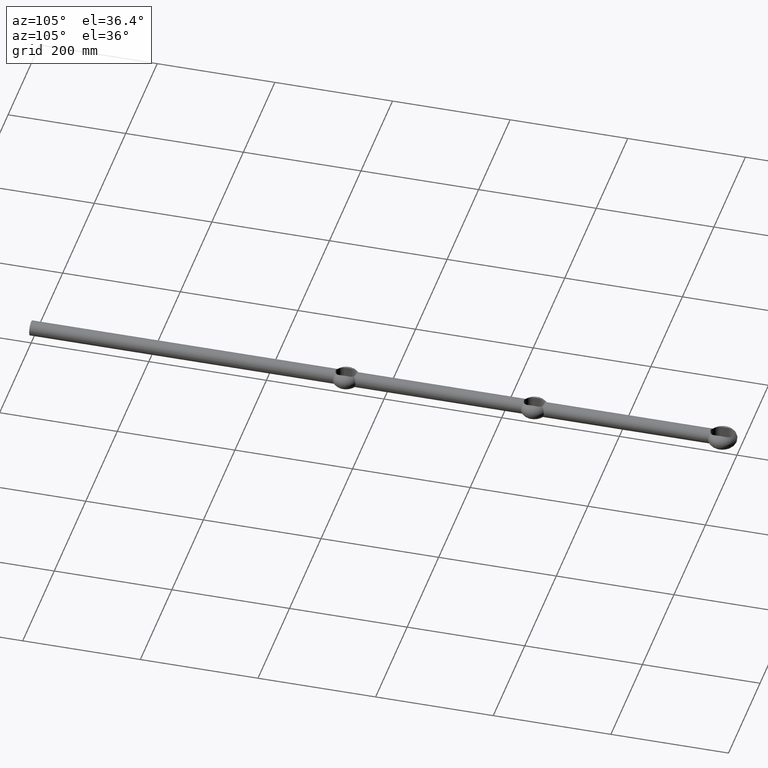
[diagram: clean part render]
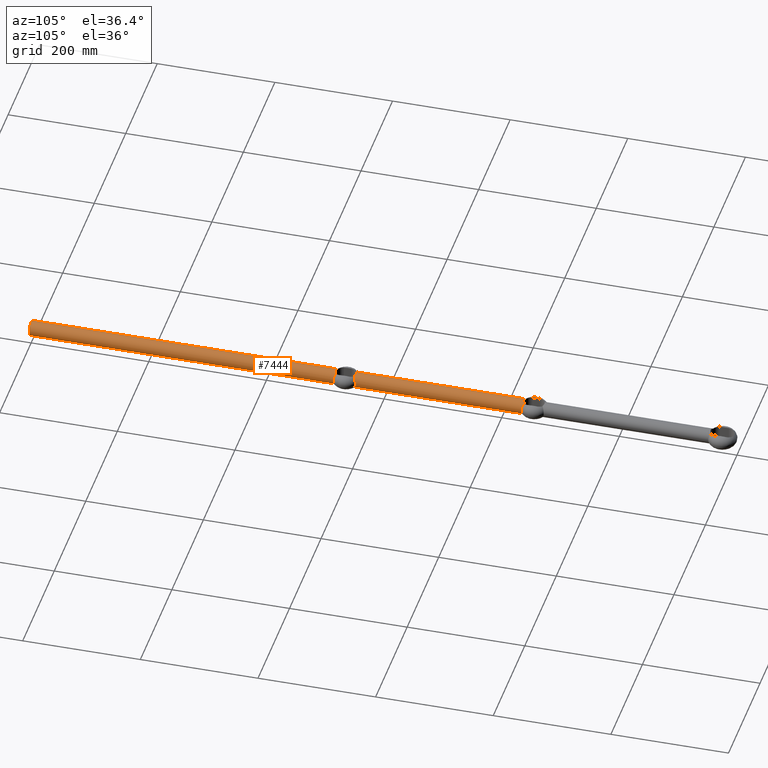
[diagram: same view with one face highlighted and labeled with its STEP entity id]
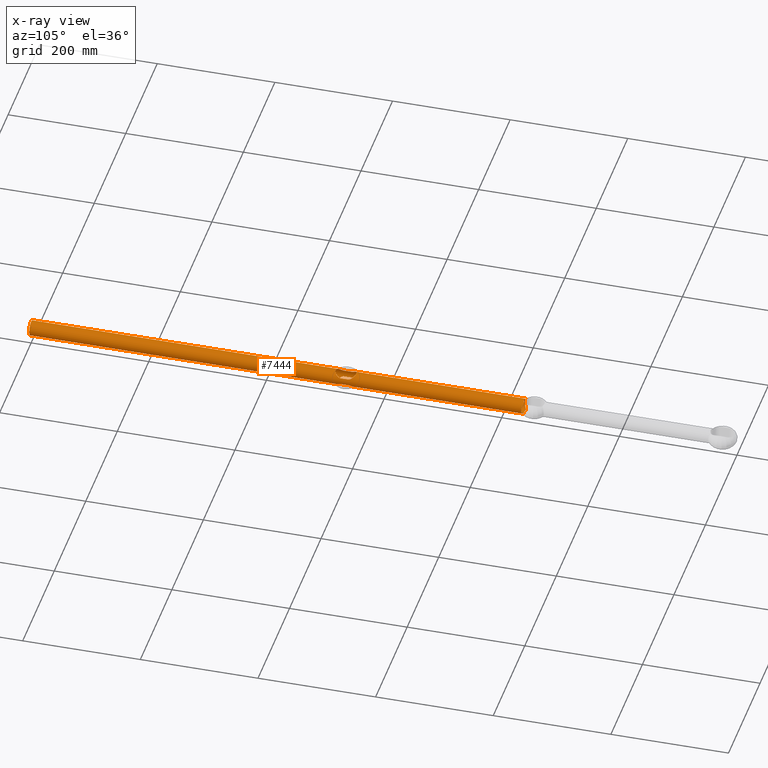
[diagram: x-ray of the same camera — body ghosted, the highlighted face saturated]
A machine part, auxiliary view. The second image highlights one B-rep face of the part: STEP entity #7444.
The next image is the same camera in x-ray: the body ghosted, the highlighted face saturated — about 0% of this face is hidden behind the body in this view.
In plain terms, the highlighted cylindrical surface (bore or boss wall) has radius 12.5 mm, axis along (-0, -1, -0).
Its self-contained STEP definition (entity closure, byte-faithful):
#39 = CARTESIAN_POINT ( 'NONE',  ( 1.139407965050737381, 838.0553805198055670, -12.45128839556241473 ) ) ;
#79 = CARTESIAN_POINT ( 'NONE',  ( -2.837003284522735314, 838.3576949993849894, -12.18612586938122000 ) ) ;
#99 = CARTESIAN_POINT ( 'NONE',  ( -3.787995630330420305, 552.3537761586400165, 11.93428918849788900 ) ) ;
#100 = B_SPLINE_CURVE_WITH_KNOTS ( 'NONE', 3,
 ( #2915, #8989, #11847, #10837, #8026, #11802, #7846, #79, #6985, #8904, #9980, #5951, #5901, #39, #6943, #3012, #1058, #7984, #11066, #5331, #6305, #10170, #1239, #7084 ),
 .UNSPECIFIED., .F., .F.,
 ( 4, 2, 2, 2, 2, 2, 2, 2, 2, 2, 2, 4 ),
 ( 0.01178495463687032237, 0.01350659789272319437, 0.01436741952064963211, 0.01522824114857606985, 0.01694988440442884645, 0.01867152766028162478, 0.01953234928820801047, 0.02039317091613439964, 0.02211481417198717797, 0.02297563579991356714, 0.02383645742783995630, 0.02555810068369258892 ),
 .UNSPECIFIED. ) ;
#152 = CARTESIAN_POINT ( 'NONE',  ( -4.804259992502487364, 551.9023473900940644, 11.54558912559098971 ) ) ;
#201 = CARTESIAN_POINT ( 'NONE',  ( -10.60729586147364500, 545.0056856495979218, 6.620153312527648382 ) ) ;
#211 = CARTESIAN_POINT ( 'NONE',  ( -6.250340644378910682, 839.9483017157430140, 10.82512086903536286 ) ) ;
#251 = CARTESIAN_POINT ( 'NONE',  ( -8.795661016712896796, 548.6391991432570876, 8.898266911032102655 ) ) ;
#367 = CARTESIAN_POINT ( 'NONE',  ( 8.795661016712893243, 548.6391991432567465, -8.898266911032099102 ) ) ;
#377 = CARTESIAN_POINT ( 'NONE',  ( 6.909232134611279719, 550.5886473378651544, 10.43860144910292931 ) ) ;
#378 = B_SPLINE_CURVE_WITH_KNOTS ( 'NONE', 3,
 ( #3793, #9659, #1763, #10715, #3834, #4861, #5754, #9694, #11724, #4820, #8602, #7648, #1724, #7689, #3709, #8676, #2678, #7733, #6785, #9574, #12564, #12649, #6745, #6704, #819, #10631, #4781, #8718, #1803, #858, #6663, #3673, #9611, #4739, #5717, #10554 ),
 .UNSPECIFIED., .F., .F.,
 ( 4, 2, 2, 2, 2, 2, 2, 2, 2, 2, 2, 2, 2, 2, 2, 2, 2, 4 ),
 ( 0.01951395620049950486, 0.02121630436440900130, 0.02291865252831849428, 0.02462100069222799073, 0.02632334885613748718, 0.02802569702004698363, 0.02887687110200173185, 0.02972804518395647660, 0.03313274151177562216, 0.03653743783959476077, 0.03738861192154952634, 0.03823978600350429191, 0.03994213416741380918, 0.04079330824936852617, 0.04164448233132324317, 0.04334683049523278819, 0.04504917865914233321, 0.04675152682305187823 ),
 .UNSPECIFIED. ) ;
#394 = CARTESIAN_POINT ( 'NONE',  ( -7.422493074062016305, 520.8743708993628161, -10.06274720975661019 ) ) ;
#407 = CARTESIAN_POINT ( 'NONE',  ( 0.7892831705582405988, 552.9785166629949344, -12.48108313540184255 ) ) ;
#421 = CARTESIAN_POINT ( 'NONE',  ( 10.99999999999993427, 542.0000000000003411, 5.937171043519075653 ) ) ;
#442 = CARTESIAN_POINT ( 'NONE',  ( 7.673213087604121796, 521.1109811105844756, 9.872400474792867087 ) ) ;
#450 = CARTESIAN_POINT ( 'NONE',  ( -2.675013956853381281, 552.6766632439287150, -12.21636765238290145 ) ) ;
#490 = CARTESIAN_POINT ( 'NONE',  ( 10.89792546999689371, 543.5431113648345445, -6.123086489174216496 ) ) ;
#521 = CARTESIAN_POINT ( 'NONE',  ( -10.89590794681913621, 527.4420840942875657, 6.126695288656489602 ) ) ;
#529 = CARTESIAN_POINT ( 'NONE',  ( 10.60729586147364856, 545.0056856495979218, -6.620153312527648382 ) ) ;
#565 = CARTESIAN_POINT ( 'NONE',  ( -5.126101849373926989, 519.2394161916768098, 11.42348066040987575 ) ) ;
#601 = CARTESIAN_POINT ( 'NONE',  ( 9.533387483753942959, 523.4711230445224146, -8.103398761844861298 ) ) ;
#645 = CARTESIAN_POINT ( 'NONE',  ( 0.4023197624886545309, 518.0005206419116348, 12.49954183520676310 ) ) ;
#652 = CARTESIAN_POINT ( 'NONE',  ( -8.787352286036465898, 548.6510448130576378, -8.906906770027113396 ) ) ;
#660 = CARTESIAN_POINT ( 'NONE',  ( -9.429479004405582288, 837.9374556686256028, 8.223389310750965464 ) ) ;
#700 = CARTESIAN_POINT ( 'NONE',  ( 1.150617809035629824, 838.0452062933663910, 12.46016225667634814 ) ) ;
#705 = CARTESIAN_POINT ( 'NONE',  ( -9.065148258886202015, 838.1556818532062607, 8.622634754079122388 ) ) ;
#744 = CARTESIAN_POINT ( 'NONE',  ( -6.250340644378910682, 839.9483017157430140, 10.82512086903536286 ) ) ;
#751 = ORIENTED_EDGE ( 'NONE', *, *, #8932, .T. ) ;
#779 = CARTESIAN_POINT ( 'NONE',  ( 3.887461779653164307, 838.7061740205847400, 11.88318776351355588 ) ) ;
#813 = CARTESIAN_POINT ( 'NONE',  ( 5.824594536600526062, 839.6543173033081757, 11.07094336227376274 ) ) ;
#819 = CARTESIAN_POINT ( 'NONE',  ( 10.99023662977672267, 837.0302173028330799, 5.980780063269842906 ) ) ;
#852 = CIRCLE ( 'NONE', #1380, 12.49999999999999645 ) ;
#856 = CARTESIAN_POINT ( 'NONE',  ( -12.34471645203050727, 836.2777349437944849, -1.984850203844926941 ) ) ;
#857 = VECTOR ( 'NONE', #10031, 1000.000000000000000 ) ;
#858 = CARTESIAN_POINT ( 'NONE',  ( 9.431502682148709127, 837.9362468456454280, 8.221115130871417875 ) ) ;
#1058 = CARTESIAN_POINT ( 'NONE',  ( 2.824078633998079457, 838.3540951722376349, -12.18926835385207141 ) ) ;
#1060 = EDGE_CURVE ( 'NONE', #1138, #11870, #378, .T. ) ;
#1076 = CARTESIAN_POINT ( 'NONE',  ( -0.4023197624885564982, 552.9994793580889336, 12.49954183520676487 ) ) ;
#1081 = ORIENTED_EDGE ( 'NONE', *, *, #7132, .T. ) ;
#1124 = CARTESIAN_POINT ( 'NONE',  ( -8.379748202632875120, 549.1581486825726870, 9.295148247895221871 ) ) ;
#1138 = VERTEX_POINT ( 'NONE', #6945 ) ;
#1239 = CARTESIAN_POINT ( 'NONE',  ( 5.819585327259732210, 839.6508583651338995, -11.07383564080975269 ) ) ;
#1258 = CARTESIAN_POINT ( 'NONE',  ( -9.839730710990844287, 546.9288155157166784, 7.713215017683070052 ) ) ;
#1277 = CARTESIAN_POINT ( 'NONE',  ( -10.99999999999986855, 528.6040239096712412, -5.937171043519171576 ) ) ;
#1294 = CARTESIAN_POINT ( 'NONE',  ( -10.99999999999993427, 1200.000999999999976, -5.937171043519074765 ) ) ;
#1335 = EDGE_CURVE ( 'NONE', #5769, #5769, #852, .T. ) ;
#1361 = CARTESIAN_POINT ( 'NONE',  ( -6.624542482687400202, 520.2114936248854065, -10.60544674900637929 ) ) ;
#1367 = CARTESIAN_POINT ( 'NONE',  ( 8.795661016712950087, 522.3608008567435945, 8.898266911032015614 ) ) ;
#1380 = AXIS2_PLACEMENT_3D ( 'NONE', #12049, #5131, #2255 ) ;
#1398 = CARTESIAN_POINT ( 'NONE',  ( 8.787352286036520965, 522.3489551869425895, -8.906906770027033460 ) ) ;
#1493 = CARTESIAN_POINT ( 'NONE',  ( -4.112566994411355203, 518.7910200397471954, 11.80963591135249757 ) ) ;
#1573 = CARTESIAN_POINT ( 'NONE',  ( 8.367498282197134429, 521.8278632720420092, -9.305994732262512059 ) ) ;
#1622 = CARTESIAN_POINT ( 'NONE',  ( -5.749883581372933428, 519.5956823434758007, 11.11938522148670394 ) ) ;
#1636 = CARTESIAN_POINT ( 'NONE',  ( 5.372012802262441156, 839.3857698694488363, 11.29902953822938372 ) ) ;
#1707 = EDGE_CURVE ( 'NONE', #10921, #10318, #9283, .T. ) ;
#1716 = CARTESIAN_POINT ( 'NONE',  ( -4.112566994411418264, 552.2089799602531457, -11.80963591135247981 ) ) ;
#1723 = CARTESIAN_POINT ( 'NONE',  ( -12.50046246320036936, 836.1930143710013681, -0.5649652187084375221 ) ) ;
#1724 = CARTESIAN_POINT ( 'NONE',  ( 11.67341840882419213, 836.6472213998814595, -4.479044536541676003 ) ) ;
#1761 = CARTESIAN_POINT ( 'NONE',  ( -12.11053525132085618, 836.4058078415469026, -3.109091094967530111 ) ) ;
#1763 = CARTESIAN_POINT ( 'NONE',  ( 7.106042576998170546, 839.3810141768317408, -10.29636099498600288 ) ) ;
#1796 = CARTESIAN_POINT ( 'NONE',  ( -3.620361234598561850, 838.6091067773645591, 11.96741013395638298 ) ) ;
#1803 = CARTESIAN_POINT ( 'NONE',  ( 9.935555531135744189, 837.6389762813788593, 7.589942720292638612 ) ) ;
#1919 = FACE_BOUND ( 'NONE', #5093, .T. ) ;
#2060 = CARTESIAN_POINT ( 'NONE',  ( 0.3733272682921007779, 553.0005015381598241, 12.50044135349318886 ) ) ;
#2143 = VERTEX_POINT ( 'NONE', #5913 ) ;
#2158 = CARTESIAN_POINT ( 'NONE',  ( -1.949230562792370725, 552.8327360204020806, 12.35300078078564212 ) ) ;
#2169 = VERTEX_POINT ( 'NONE', #7859 ) ;
#2230 = CARTESIAN_POINT ( 'NONE',  ( -4.804259992502376342, 519.0976526099063904, -11.54558912559103945 ) ) ;
#2236 = CARTESIAN_POINT ( 'NONE',  ( 10.99999999999993427, 529.0000000000000000, 5.937171043519079205 ) ) ;
#2243 = CARTESIAN_POINT ( 'NONE',  ( 10.99999999999993427, 542.0000000000003411, -5.937171043519074765 ) ) ;
#2255 = DIRECTION ( 'NONE',  ( 0.000000000000000000, 0.000000000000000000, 1.000000000000000000 ) ) ;
#2259 = CARTESIAN_POINT ( 'NONE',  ( -7.673213087604064953, 549.8890188894157518, 9.872400474792916825 ) ) ;
#2329 = CARTESIAN_POINT ( 'NONE',  ( 9.519627051650791927, 547.5217953285380190, -8.104979159214829920 ) ) ;
#2359 = CARTESIAN_POINT ( 'NONE',  ( 8.379748202632939069, 521.8418513174276541, 9.295148247895179239 ) ) ;
#2366 = B_SPLINE_CURVE_WITH_KNOTS ( 'NONE', 3,
 ( #2236, #8288, #4323, #11209, #2408, #5329, #5417, #6382, #7298, #3239, #10293, #1367, #2359, #442, #9302, #5458, #12507, #6476, #10372, #3576, #8529, #3456, #10331, #6551, #11332, #11418, #645, #5622, #11463, #5497, #7542, #11512, #3542, #10452, #1493, #565, #1622, #7498, #5541, #2624, #11377, #9517, #3613, #6431, #5581, #6516, #7453, #2583, #521, #4450, #8495, #9393 ),
 .UNSPECIFIED., .F., .F.,
 ( 4, 2, 2, 2, 2, 2, 2, 2, 2, 2, 2, 2, 2, 2, 2, 2, 2, 2, 2, 2, 2, 2, 2, 2, 2, 4 ),
 ( 4.670885906470169154E-18, 0.001166545829781350787, 0.002333091659562696804, 0.004666183319125084827, 0.005832729148906145265, 0.006999274978687208305, 0.009332366638249335253, 0.01049891246803029594, 0.01166545829781125490, 0.01283200412759221559, 0.01399854995737317628, 0.01633164161693509767, 0.01749818744671605836, 0.01866473327649701558, 0.01983127910627797627, 0.02099782493605893696, 0.02216437076583989765, 0.02333091659562085834, 0.02566400825518265136, 0.02799709991474444437, 0.03033019157430623738, 0.03266328323386803040, 0.03382982906364879333, 0.03499637489342955626, 0.03616292072321031226, 0.03732946655299107519 ),
 .UNSPECIFIED. ) ;
#2367 = CARTESIAN_POINT ( 'NONE',  ( 9.839730710990844287, 546.9288155157166784, -7.713215017683071828 ) ) ;
#2402 = CARTESIAN_POINT ( 'NONE',  ( 9.851415685578203352, 524.0591043262304538, -7.707541438492796715 ) ) ;
#2408 = CARTESIAN_POINT ( 'NONE',  ( 10.83772946422384109, 527.0814489869819681, 6.230281607106222808 ) ) ;
#2431 = CARTESIAN_POINT ( 'NONE',  ( 5.749883581373026686, 551.4043176565247677, 11.11938522148667197 ) ) ;
#2448 = CARTESIAN_POINT ( 'NONE',  ( 2.675013956853496744, 518.3233367560717397, -12.21636765238288014 ) ) ;
#2475 = CARTESIAN_POINT ( 'NONE',  ( 7.428954400678269288, 550.1403445418326328, 10.07110728629740315 ) ) ;
#2504 = CARTESIAN_POINT ( 'NONE',  ( 10.39218894284560868, 545.6709119447054945, -6.961529849445893703 ) ) ;
#2533 = CARTESIAN_POINT ( 'NONE',  ( 10.97810776254613074, 528.2068657687661926, -5.978156496741008574 ) ) ;
#2539 = CARTESIAN_POINT ( 'NONE',  ( -10.99999999999993427, 1200.000999999999976, 5.937171043519074765 ) ) ;
#2580 = CARTESIAN_POINT ( 'NONE',  ( 4.112566994411521293, 518.7910200397473091, -11.80963591135243895 ) ) ;
#2583 = CARTESIAN_POINT ( 'NONE',  ( -10.83570562530568182, 527.0695615121564970, 6.233846234099879702 ) ) ;
#2624 = CARTESIAN_POINT ( 'NONE',  ( -8.367498282197010084, 521.8278632720421228, 9.305994732262627522 ) ) ;
#2670 = CARTESIAN_POINT ( 'NONE',  ( -10.97810776254606857, 542.7931342312343759, -5.978156496741099168 ) ) ;
#2672 = CARTESIAN_POINT ( 'NONE',  ( -4.641261349106958534, 839.0234735115323019, 11.60936192940628509 ) ) ;
#2678 = CARTESIAN_POINT ( 'NONE',  ( 12.49857415661326598, 836.1940394568919146, -1.175576009617111062 ) ) ;
#2698 = LINE ( 'NONE', #5785, #10693 ) ;
#2713 = CARTESIAN_POINT ( 'NONE',  ( -6.909232134611282383, 550.5886473378654955, -10.43860144910292931 ) ) ;
#2720 = CARTESIAN_POINT ( 'NONE',  ( -4.393348440201925165, 838.9116690492086263, 11.70562680195460814 ) ) ;
#2743 = EDGE_CURVE ( 'NONE', #11067, #1138, #100, .T. ) ;
#2765 = CARTESIAN_POINT ( 'NONE',  ( -1.139407965050753591, 838.0553805198053396, 12.45128839556240941 ) ) ;
#2769 = CARTESIAN_POINT ( 'NONE',  ( -7.106441358696892863, 839.3727796378973380, -10.33081497119643366 ) ) ;
#2799 = CARTESIAN_POINT ( 'NONE',  ( -5.819585327259754415, 839.6508583651335584, 11.07383564080973670 ) ) ;
#2883 = ORIENTED_EDGE ( 'NONE', *, *, #1707, .T. ) ;
#2915 = CARTESIAN_POINT ( 'NONE',  ( -6.250340644378886701, 839.9483017157430140, -10.82512086903537707 ) ) ;
#3012 = CARTESIAN_POINT ( 'NONE',  ( 2.276638142971286971, 838.2229513530954819, -12.30418440178853601 ) ) ;
#3119 = CARTESIAN_POINT ( 'NONE',  ( -6.624542482687568068, 550.7885063751151620, 10.60544674900627093 ) ) ;
#3190 = CARTESIAN_POINT ( 'NONE',  ( -10.99999999999993427, 529.0000000000000000, -5.937171043519072988 ) ) ;
#3233 = CARTESIAN_POINT ( 'NONE',  ( -8.795661016712818636, 522.3608008567435945, -8.898266911032141735 ) ) ;
#3239 = CARTESIAN_POINT ( 'NONE',  ( 9.519627051650852323, 523.4782046714623220, 8.104979159214746431 ) ) ;
#3246 = EDGE_LOOP ( 'NONE', ( #8053 ) ) ;
#3263 = CARTESIAN_POINT ( 'NONE',  ( -7.422493074062083807, 550.1256291006377523, 10.06274720975655157 ) ) ;
#3274 = CARTESIAN_POINT ( 'NONE',  ( 10.99999999999999645, 529.0000000000000000, -5.937171043518957525 ) ) ;
#3280 = CARTESIAN_POINT ( 'NONE',  ( -9.839730710990750140, 524.0711844842837763, -7.713215017683209496 ) ) ;
#3326 = CARTESIAN_POINT ( 'NONE',  ( -10.89792546999683154, 527.4568886351657966, -6.123086489174297320 ) ) ;
#3354 = CARTESIAN_POINT ( 'NONE',  ( 8.787352286036460569, 548.6510448130576378, 8.906906770027120501 ) ) ;
#3365 = CARTESIAN_POINT ( 'NONE',  ( -10.97872767729319321, 528.2167306837859542, -5.976998100330241925 ) ) ;
#3378 = CARTESIAN_POINT ( 'NONE',  ( 5.754441225195932041, 551.3816357520595375, -11.10208626314466329 ) ) ;
#3390 = CARTESIAN_POINT ( 'NONE',  ( 10.89590794681920194, 543.5579159057128891, 6.126695288656405225 ) ) ;
#3408 = CARTESIAN_POINT ( 'NONE',  ( 10.37225639478762140, 525.3203053792749415, -6.978884041121404813 ) ) ;
#3436 = CARTESIAN_POINT ( 'NONE',  ( 10.68006026725760016, 544.6599665113263882, 6.496896794349440896 ) ) ;
#3456 = CARTESIAN_POINT ( 'NONE',  ( 3.787995630330495800, 518.6462238413605519, 11.93428918849785525 ) ) ;
#3494 = CARTESIAN_POINT ( 'NONE',  ( 10.58625742050278795, 525.9908457919444800, -6.649787891766289150 ) ) ;
#3502 = CARTESIAN_POINT ( 'NONE',  ( 1.949230562792371835, 552.8327360204024217, -12.35300078078564923 ) ) ;
#3542 = CARTESIAN_POINT ( 'NONE',  ( -3.041688872940271793, 518.4221616029151392, 12.13001838620320783 ) ) ;
#3549 = CARTESIAN_POINT ( 'NONE',  ( -10.25173419311122558, 546.0022064290936896, -7.155668560157675273 ) ) ;
#3573 = CARTESIAN_POINT ( 'NONE',  ( 10.99999999999999645, 529.0000000000000000, -5.937171043518957525 ) ) ;
#3576 = CARTESIAN_POINT ( 'NONE',  ( 5.130969763086973501, 519.2633767409419079, 11.40364251012925578 ) ) ;
#3607 = LINE ( 'NONE', #2539, #10525 ) ;
#3613 = CARTESIAN_POINT ( 'NONE',  ( -9.851415685578070125, 524.0591043262304538, 7.707541438492961916 ) ) ;
#3622 = CARTESIAN_POINT ( 'NONE',  ( -10.58625742050272400, 545.0091542080557474, -6.649787891766372638 ) ) ;
#3626 = ORIENTED_EDGE ( 'NONE', *, *, #11894, .T. ) ;
#3666 = CARTESIAN_POINT ( 'NONE',  ( -6.250340644378910682, 839.9483017157430140, 10.82512086903536286 ) ) ;
#3673 = CARTESIAN_POINT ( 'NONE',  ( 8.318637239814172801, 838.6124043426335675, 9.344865063706233599 ) ) ;
#3699 = CARTESIAN_POINT ( 'NONE',  ( -9.533387483753884339, 547.5288769554780401, -8.103398761844896825 ) ) ;
#3709 = CARTESIAN_POINT ( 'NONE',  ( 11.95199179039278192, 836.4930261193042043, -3.671624959433470892 ) ) ;
#3792 = FACE_OUTER_BOUND ( 'NONE', #7378, .T. ) ;
#3793 = CARTESIAN_POINT ( 'NONE',  ( 6.250340644378961308, 839.9483017157429003, -10.82512086903533444 ) ) ;
#3834 = CARTESIAN_POINT ( 'NONE',  ( 8.315301373351106307, 838.6144865247297275, -9.347680856318383746 ) ) ;
#4053 = CARTESIAN_POINT ( 'NONE',  ( -9.347701959804924243, 547.8078500812991933, 8.303232488367514819 ) ) ;
#4094 = CARTESIAN_POINT ( 'NONE',  ( 10.99999999999993427, 1200.000999999999976, -5.937171043519074765 ) ) ;
#4127 = VERTEX_POINT ( 'NONE', #11907 ) ;
#4156 = CARTESIAN_POINT ( 'NONE',  ( -5.130969763086916657, 551.7366232590584332, 11.40364251012928776 ) ) ;
#4175 = CARTESIAN_POINT ( 'NONE',  ( -7.673213087603939719, 521.1109811105845893, -9.872400474793005642 ) ) ;
#4220 = CARTESIAN_POINT ( 'NONE',  ( -3.076022648827779982, 518.4109130439665023, -12.13971156873000368 ) ) ;
#4275 = CARTESIAN_POINT ( 'NONE',  ( -0.7892831705581203616, 518.0214833370056340, -12.48108313540184966 ) ) ;
#4299 = CARTESIAN_POINT ( 'NONE',  ( 10.25173419311122558, 546.0022064290935759, 7.155668560157677938 ) ) ;
#4323 = CARTESIAN_POINT ( 'NONE',  ( 10.97872767729331578, 528.2167306837859542, 5.976998100330016328 ) ) ;
#4330 = CARTESIAN_POINT ( 'NONE',  ( 8.379748202632873344, 549.1581486825726870, -9.295148247895221871 ) ) ;
#4342 = CARTESIAN_POINT ( 'NONE',  ( 4.112566994411438692, 552.2089799602531457, 11.80963591135246915 ) ) ;
#4383 = CARTESIAN_POINT ( 'NONE',  ( 10.58625742050272400, 545.0091542080557474, 6.649787891766370862 ) ) ;
#4413 = CARTESIAN_POINT ( 'NONE',  ( 9.347701959804924243, 547.8078500812990796, -8.303232488367514819 ) ) ;
#4450 = CARTESIAN_POINT ( 'NONE',  ( -10.97810776254600817, 528.2068657687661926, 5.978156496741237724 ) ) ;
#4505 = CARTESIAN_POINT ( 'NONE',  ( -10.89590794681919839, 543.5579159057127754, -6.126695288656406113 ) ) ;
#4517 = CARTESIAN_POINT ( 'NONE',  ( -10.41090122889134761, 837.3618556187303739, 6.939838182200646521 ) ) ;
#4584 = CARTESIAN_POINT ( 'NONE',  ( 1.541147260303614486, 518.1014537545833036, -12.41079883079560098 ) ) ;
#4597 = FACE_BOUND ( 'NONE', #6240, .T. ) ;
#4737 = CARTESIAN_POINT ( 'NONE',  ( -7.922492711130053600, 838.8549607614734214, -9.726219301012958951 ) ) ;
#4739 = CARTESIAN_POINT ( 'NONE',  ( 7.099091824877000079, 839.3855091636992256, 10.30124497867896416 ) ) ;
#4748 = CARTESIAN_POINT ( 'NONE',  ( -10.99999999999993427, 542.3959760903292135, 5.937171043519093416 ) ) ;
#4781 = CARTESIAN_POINT ( 'NONE',  ( 10.41164548625611808, 837.3619166438484172, 6.922629427531410862 ) ) ;
#4785 = VERTEX_POINT ( 'NONE', #8450 ) ;
#4814 = CARTESIAN_POINT ( 'NONE',  ( 2.837003284522724655, 838.3576949993847620, 12.18612586938122178 ) ) ;
#4819 = CARTESIAN_POINT ( 'NONE',  ( -12.29608760154313529, 836.3042523927352931, -2.266832200918630580 ) ) ;
#4820 = CARTESIAN_POINT ( 'NONE',  ( 10.98126576961715273, 837.0353194045643477, -5.996714612637974007 ) ) ;
#4854 = AXIS2_PLACEMENT_3D ( 'NONE', #12644, #12799, #6778 ) ;
#4861 = CARTESIAN_POINT ( 'NONE',  ( 9.066882314766891326, 838.1546552159076100, -8.620615953132539033 ) ) ;
#4904 = CARTESIAN_POINT ( 'NONE',  ( -6.250340644378886701, 839.9483017157430140, -10.82512086903537707 ) ) ;
#5044 = CARTESIAN_POINT ( 'NONE',  ( -6.898195547987179488, 550.5752055309106936, 10.42915063769302719 ) ) ;
#5093 = EDGE_LOOP ( 'NONE', ( #1081, #2883, #10965, #8947 ) ) ;
#5131 = DIRECTION ( 'NONE',  ( 0.000000000000000000, 1.000000000000000000, 0.000000000000000000 ) ) ;
#5181 = CARTESIAN_POINT ( 'NONE',  ( 2.675013956853377728, 552.6766632439286013, 12.21636765238290678 ) ) ;
#5231 = CARTESIAN_POINT ( 'NONE',  ( -10.39218894284560513, 545.6709119447052672, 6.961529849445893703 ) ) ;
#5271 = CARTESIAN_POINT ( 'NONE',  ( 9.851415685578153614, 546.9408956737698873, 7.707541438492903296 ) ) ;
#5329 = CARTESIAN_POINT ( 'NONE',  ( 10.60729586147370185, 525.9943143504024192, 6.620153312527505385 ) ) ;
#5331 = CARTESIAN_POINT ( 'NONE',  ( 4.393348440201895855, 838.9116690492086263, -11.70562680195461880 ) ) ;
#5337 = CARTESIAN_POINT ( 'NONE',  ( 5.130969763086918434, 551.7366232590583195, -11.40364251012928065 ) ) ;
#5351 = CARTESIAN_POINT ( 'NONE',  ( 10.37225639478755745, 545.6796946207256269, 6.978884041121515835 ) ) ;
#5412 = CARTESIAN_POINT ( 'NONE',  ( 5.749883581373096852, 519.5956823434760281, -11.11938522148662223 ) ) ;
#5417 = CARTESIAN_POINT ( 'NONE',  ( 10.39218894284567440, 525.3290880552949602, 6.961529849445831530 ) ) ;
#5453 = CARTESIAN_POINT ( 'NONE',  ( 6.909232134611362319, 520.4113526621351866, -10.43860144910288845 ) ) ;
#5458 = CARTESIAN_POINT ( 'NONE',  ( 6.898195547987319820, 520.4247944690897612, 10.42915063769292239 ) ) ;
#5464 = CARTESIAN_POINT ( 'NONE',  ( 6.624542482687567180, 550.7885063751150483, -10.60544674900626561 ) ) ;
#5497 = CARTESIAN_POINT ( 'NONE',  ( -1.541147260303414646, 518.1014537545834173, 12.41079883079562940 ) ) ;
#5537 = CARTESIAN_POINT ( 'NONE',  ( 5.126101849374091302, 519.2394161916766961, -11.42348066040979937 ) ) ;
#5541 = CARTESIAN_POINT ( 'NONE',  ( -7.428954400678194681, 520.8596554581679356, 10.07110728629744223 ) ) ;
#5581 = CARTESIAN_POINT ( 'NONE',  ( -10.37225639478749173, 525.3203053792748278, 6.978884041121590442 ) ) ;
#5622 = CARTESIAN_POINT ( 'NONE',  ( -0.3733272682920015795, 517.9994984618405169, 12.50044135349318886 ) ) ;
#5710 = CARTESIAN_POINT ( 'NONE',  ( 2.287860830194230921, 838.2251626778391937, 12.30224603992436272 ) ) ;
#5717 = CARTESIAN_POINT ( 'NONE',  ( 6.678919237530326569, 839.6601855650079642, 10.57766292075993420 ) ) ;
#5743 = ORIENTED_EDGE ( 'NONE', *, *, #12181, .T. ) ;
#5753 = CARTESIAN_POINT ( 'NONE',  ( -12.18249205319098216, 836.3662141827205687, 2.855962753906949203 ) ) ;
#5754 = CARTESIAN_POINT ( 'NONE',  ( 9.425601429565526601, 837.9397464817585615, -8.228177549877552011 ) ) ;
#5763 = VERTEX_POINT ( 'NONE', #8784 ) ;
#5769 = VERTEX_POINT ( 'NONE', #11946 ) ;
#5785 = CARTESIAN_POINT ( 'NONE',  ( 10.99999999999993427, 1200.000999999999976, 5.937171043519074765 ) ) ;
#5790 = CARTESIAN_POINT ( 'NONE',  ( -11.24333478139446818, 836.8874761092196195, -5.490938602186474782 ) ) ;
#5881 = ORIENTED_EDGE ( 'NONE', *, *, #9016, .F. ) ;
#5901 = CARTESIAN_POINT ( 'NONE',  ( 0.5651322442697455095, 838.0107519991784102, -12.49053476704560062 ) ) ;
#5913 = CARTESIAN_POINT ( 'NONE',  ( -10.99999999999993427, 542.0000000000003411, -5.937171043519072988 ) ) ;
#5951 = CARTESIAN_POINT ( 'NONE',  ( 0.2784718264512110464, 837.9998018624827409, -12.50017436100595347 ) ) ;
#6012 = CARTESIAN_POINT ( 'NONE',  ( -5.754441225195928489, 551.3816357520594238, 11.10208626314466329 ) ) ;
#6055 = CARTESIAN_POINT ( 'NONE',  ( -9.519627051650791927, 547.5217953285381327, 8.104979159214828144 ) ) ;
#6105 = CARTESIAN_POINT ( 'NONE',  ( -10.97872767729325005, 542.7832693162145006, 5.976998100330104258 ) ) ;
#6151 = CARTESIAN_POINT ( 'NONE',  ( 3.041688872940350397, 552.5778383970856567, 12.13001838620319717 ) ) ;
#6169 = CARTESIAN_POINT ( 'NONE',  ( -6.898195547987106657, 520.4247944690895338, -10.42915063769306094 ) ) ;
#6240 = EDGE_LOOP ( 'NONE', ( #5881, #10728, #5743, #9647 ) ) ;
#6258 = CARTESIAN_POINT ( 'NONE',  ( -0.4023197624884514156, 518.0005206419117485, -12.49954183520677020 ) ) ;
#6276 = CARTESIAN_POINT ( 'NONE',  ( 10.99999999999993427, 542.0000000000003411, -5.937171043519074765 ) ) ;
#6298 = CARTESIAN_POINT ( 'NONE',  ( -9.519627051650692451, 523.4782046714623220, -8.104979159214932949 ) ) ;
#6305 = CARTESIAN_POINT ( 'NONE',  ( 4.641261349106998502, 839.0234735115324156, -11.60936192940626732 ) ) ;
#6308 = EDGE_CURVE ( 'NONE', #7116, #2143, #7398, .T. ) ;
#6352 = CARTESIAN_POINT ( 'NONE',  ( -1.925570257704329657, 552.8369283875211977, -12.35667906317034515 ) ) ;
#6382 = CARTESIAN_POINT ( 'NONE',  ( 9.988467199293140197, 524.3795217356815783, 7.518852653548755427 ) ) ;
#6389 = CARTESIAN_POINT ( 'NONE',  ( 10.99999999999993072, 542.3959760903292135, -5.937171043519085423 ) ) ;
#6426 = CARTESIAN_POINT ( 'NONE',  ( 0.3733272682922050834, 517.9994984618406306, -12.50044135349317997 ) ) ;
#6431 = CARTESIAN_POINT ( 'NONE',  ( -10.25173419311116696, 524.9977935709067651, 7.155668560157779190 ) ) ;
#6438 = CARTESIAN_POINT ( 'NONE',  ( 4.804259992502487364, 551.9023473900939507, -11.54558912559098793 ) ) ;
#6447 = DIRECTION ( 'NONE',  ( -0.000000000000000000, -1.000000000000000000, -0.000000000000000000 ) ) ;
#6476 = CARTESIAN_POINT ( 'NONE',  ( 6.052660634286213259, 519.8082805386301288, 10.94190856738905637 ) ) ;
#6494 = CARTESIAN_POINT ( 'NONE',  ( -11.95182304600800016, 836.4931197021811613, 3.672034156479669686 ) ) ;
#6516 = CARTESIAN_POINT ( 'NONE',  ( -10.58625742050266716, 525.9908457919445937, 6.649787891766487213 ) ) ;
#6521 = CARTESIAN_POINT ( 'NONE',  ( -10.83570562530576709, 543.9304384878440715, -6.233846234099709172 ) ) ;
#6527 = CARTESIAN_POINT ( 'NONE',  ( 6.250340644378900912, 839.9483017157430140, 10.82512086903536819 ) ) ;
#6551 = CARTESIAN_POINT ( 'NONE',  ( 1.949230562792457544, 518.1672639795983741, 12.35300078078563146 ) ) ;
#6561 = CARTESIAN_POINT ( 'NONE',  ( -5.749883581373021357, 551.4043176565246540, -11.11938522148667552 ) ) ;
#6575 = CARTESIAN_POINT ( 'NONE',  ( -7.930337506180386242, 838.8500837923978679, 9.719399120801256231 ) ) ;
#6611 = CARTESIAN_POINT ( 'NONE',  ( 4.645949983978148623, 839.0256261156855544, 11.60751033855822811 ) ) ;
#6662 = CARTESIAN_POINT ( 'NONE',  ( -11.23204343180504061, 836.8938239363136518, 5.514455733987206898 ) ) ;
#6663 = CARTESIAN_POINT ( 'NONE',  ( 9.073717630047321236, 838.1505150376323172, 8.613586764912094296 ) ) ;
#6704 = CARTESIAN_POINT ( 'NONE',  ( 11.24474346431857619, 836.8866839290492408, 5.488025213573121341 ) ) ;
#6745 = CARTESIAN_POINT ( 'NONE',  ( 11.57857393162085913, 836.6999873859767831, 4.718558550105871774 ) ) ;
#6778 = DIRECTION ( 'NONE',  ( 0.000000000000000000, 0.000000000000000000, -1.000000000000000000 ) ) ;
#6781 = CARTESIAN_POINT ( 'NONE',  ( -9.058739677260666312, 838.1607466065654535, -8.617467763181256402 ) ) ;
#6785 = CARTESIAN_POINT ( 'NONE',  ( 12.34427390251496703, 836.2772424137846201, 2.274804351676415592 ) ) ;
#6820 = CARTESIAN_POINT ( 'NONE',  ( -12.17914783697488446, 836.3682055592730649, -2.828543175745145355 ) ) ;
#6943 = CARTESIAN_POINT ( 'NONE',  ( 1.428207773063064234, 838.0893544072818031, -12.42142227419123834 ) ) ;
#6945 = CARTESIAN_POINT ( 'NONE',  ( 6.250340644378961308, 839.9483017157429003, -10.82512086903533444 ) ) ;
#6985 = CARTESIAN_POINT ( 'NONE',  ( -2.287860830194236250, 838.2251626778391937, -12.30224603992436272 ) ) ;
#7004 = CARTESIAN_POINT ( 'NONE',  ( -3.076022648827901218, 552.5890869560338388, 12.13971156872996460 ) ) ;
#7055 = CARTESIAN_POINT ( 'NONE',  ( -1.561486032180027239, 552.8955292397519088, 12.40814915801084339 ) ) ;
#7084 = CARTESIAN_POINT ( 'NONE',  ( 6.250340644378961308, 839.9483017157429003, -10.82512086903533444 ) ) ;
#7103 = CARTESIAN_POINT ( 'NONE',  ( -9.988467199293083354, 546.6204782643191038, 7.518852653548851350 ) ) ;
#7116 = VERTEX_POINT ( 'NONE', #6276 ) ;
#7132 = EDGE_CURVE ( 'NONE', #2143, #10921, #9788, .T. ) ;
#7149 = CARTESIAN_POINT ( 'NONE',  ( -10.89792546999689549, 543.5431113648345445, 6.123086489174215608 ) ) ;
#7171 = CARTESIAN_POINT ( 'NONE',  ( -8.379748202632764986, 521.8418513174277678, -9.295148247895339111 ) ) ;
#7189 = LINE ( 'NONE', #4094, #12569 ) ;
#7194 = CARTESIAN_POINT ( 'NONE',  ( -10.83772946422378070, 543.9185510130186003, 6.230281607106310737 ) ) ;
#7298 = CARTESIAN_POINT ( 'NONE',  ( 9.839730710990908236, 524.0711844842837763, 7.713215017683008767 ) ) ;
#7305 = CARTESIAN_POINT ( 'NONE',  ( 3.076022648827904327, 552.5890869560339524, -12.13971156872996104 ) ) ;
#7314 = CARTESIAN_POINT ( 'NONE',  ( 10.99999999999993250, 542.3974740288044813, 5.937171043519088087 ) ) ;
#7328 = CARTESIAN_POINT ( 'NONE',  ( 3.759777883009550070, 518.6556002288655236, -11.92699826108098549 ) ) ;
#7333 = CARTESIAN_POINT ( 'NONE',  ( -10.99999999999993427, 529.0000000000000000, -5.937171043519072988 ) ) ;
#7341 = CARTESIAN_POINT ( 'NONE',  ( -3.041688872940364163, 552.5778383970855430, -12.13001838620318829 ) ) ;
#7378 = EDGE_LOOP ( 'NONE', ( #7388, #751, #3626, #11791 ) ) ;
#7388 = ORIENTED_EDGE ( 'NONE', *, *, #1060, .T. ) ;
#7398 = B_SPLINE_CURVE_WITH_KNOTS ( 'NONE', 3,
 ( #2243, #6389, #10299, #490, #8253, #529, #2504, #12177, #2367, #2329, #4413, #367, #4330, #10377, #9271, #11341, #5464, #11216, #3378, #5337, #6438, #7421, #7305, #3502, #12214, #407, #8295, #10260, #11257, #11295, #6352, #450, #7341, #9436, #1716, #9527, #6561, #2713, #8636, #9601, #652, #3699, #10542, #3549, #10458, #3622, #8591, #6521, #4505, #2670, #9479, #9564 ),
 .UNSPECIFIED., .F., .F.,
 ( 4, 2, 2, 2, 2, 2, 2, 2, 2, 2, 2, 2, 2, 2, 2, 2, 2, 2, 2, 2, 2, 2, 2, 2, 2, 4 ),
 ( 0.000000000000000000, 0.001166545829781314792, 0.002333091659562629584, 0.004666183319124954723, 0.005832729148905982201, 0.006999274978687009680, 0.009332366638249064636, 0.01049891246802998543, 0.01166545829781090969, 0.01283200412759183222, 0.01399854995737275648, 0.01633164161693460154, 0.01749818744671552406, 0.01866473327649645006, 0.01983127910627737259, 0.02099782493605828818, 0.02216437076583921070, 0.02333091659562013323, 0.02566400825518184992, 0.02799709991474357007, 0.03033019157430528676, 0.03266328323386700344, 0.03382982906364786352, 0.03499637489342872360, 0.03616292072320958367, 0.03732946655299043681 ),
 .UNSPECIFIED. ) ;
#7421 = CARTESIAN_POINT ( 'NONE',  ( 3.787995630330420305, 552.3537761586400165, -11.93428918849788900 ) ) ;
#7444 = ADVANCED_FACE ( 'NONE', ( #1919, #4597, #7813, #3792 ), #7505, .T. ) ;
#7453 = CARTESIAN_POINT ( 'NONE',  ( -10.68006026725753621, 526.3400334886740666, 6.496896794349519944 ) ) ;
#7494 = CARTESIAN_POINT ( 'NONE',  ( 3.041688872940457422, 518.4221616029152528, -12.13001838620316342 ) ) ;
#7498 = CARTESIAN_POINT ( 'NONE',  ( -6.909232134611208664, 520.4113526621350729, 10.43860144910299148 ) ) ;
#7505 = CYLINDRICAL_SURFACE ( 'NONE', #4854, 12.49999999999999645 ) ;
#7542 = CARTESIAN_POINT ( 'NONE',  ( -1.925570257704261712, 518.1630716124790297, 12.35667906317034870 ) ) ;
#7594 = CARTESIAN_POINT ( 'NONE',  ( -0.5651322442697597204, 838.0107519991784102, 12.49053476704560062 ) ) ;
#7646 = CARTESIAN_POINT ( 'NONE',  ( -11.57023834049581801, 836.7046315832084247, 4.739102253395293118 ) ) ;
#7648 = CARTESIAN_POINT ( 'NONE',  ( 11.56964285751844379, 836.7049658738098969, -4.740379503230901292 ) ) ;
#7682 = DIRECTION ( 'NONE',  ( 0.000000000000000000, 1.000000000000000000, 0.000000000000000000 ) ) ;
#7689 = CARTESIAN_POINT ( 'NONE',  ( 11.86466394294699711, 836.5412114065450169, -3.944652941480739639 ) ) ;
#7726 = CARTESIAN_POINT ( 'NONE',  ( -0.2784718264512257568, 837.9998018624826273, 12.50017436100595347 ) ) ;
#7732 = CARTESIAN_POINT ( 'NONE',  ( -11.87866640046770961, 836.5333568596515761, -3.933615460052299895 ) ) ;
#7733 = CARTESIAN_POINT ( 'NONE',  ( 12.50140721360777363, 836.1925015038516449, 1.145055711441021806 ) ) ;
#7766 = CARTESIAN_POINT ( 'NONE',  ( -10.98639180345328725, 837.0323883539314238, -5.988120528304731849 ) ) ;
#7813 = FACE_OUTER_BOUND ( 'NONE', #3246, .T. ) ;
#7846 = CARTESIAN_POINT ( 'NONE',  ( -3.628594115689871114, 838.6120206207267529, -11.96488059191480069 ) ) ;
#7859 = CARTESIAN_POINT ( 'NONE',  ( -10.99999999999987033, 529.0000000000000000, 5.937171043519194669 ) ) ;
#7984 = CARTESIAN_POINT ( 'NONE',  ( 3.620361234598565403, 838.6091067773647865, -11.96741013395638653 ) ) ;
#8026 = CARTESIAN_POINT ( 'NONE',  ( -4.395598388745396434, 838.9126848374997962, -11.70475225350974213 ) ) ;
#8053 = ORIENTED_EDGE ( 'NONE', *, *, #1335, .T. ) ;
#8157 = CARTESIAN_POINT ( 'NONE',  ( -5.130969763086735469, 519.2633767409416805, -11.40364251012935703 ) ) ;
#8199 = CARTESIAN_POINT ( 'NONE',  ( -9.988467199293015852, 524.3795217356816920, -7.518852653548922405 ) ) ;
#8253 = CARTESIAN_POINT ( 'NONE',  ( 10.83772946422377892, 543.9185510130186003, -6.230281607106310737 ) ) ;
#8284 = CARTESIAN_POINT ( 'NONE',  ( -1.561486032179908001, 518.1044707602483186, -12.40814915801086826 ) ) ;
#8288 = CARTESIAN_POINT ( 'NONE',  ( 10.99999999999999822, 528.6040239096714686, 5.937171043518949531 ) ) ;
#8295 = CARTESIAN_POINT ( 'NONE',  ( 0.4023197624885627710, 552.9994793580885926, -12.49954183520675954 ) ) ;
#8335 = EDGE_CURVE ( 'NONE', #4785, #5763, #9853, .T. ) ;
#8347 = CARTESIAN_POINT ( 'NONE',  ( 10.97810776254607035, 542.7931342312342622, 5.978156496741099168 ) ) ;
#8364 = CARTESIAN_POINT ( 'NONE',  ( 10.83570562530580794, 527.0695615121564970, -6.233846234099662986 ) ) ;
#8391 = CARTESIAN_POINT ( 'NONE',  ( 10.83570562530574577, 543.9304384878441851, 6.233846234099747363 ) ) ;
#8413 = DIRECTION ( 'NONE',  ( 0.000000000000000000, 1.000000000000000000, 0.000000000000000000 ) ) ;
#8448 = CARTESIAN_POINT ( 'NONE',  ( 10.89590794681926411, 527.4420840942875657, -6.126695288656267557 ) ) ;
#8450 = CARTESIAN_POINT ( 'NONE',  ( -10.99999999999993427, 542.0000000000003411, 5.937171043519079205 ) ) ;
#8495 = CARTESIAN_POINT ( 'NONE',  ( -10.99999999999986855, 528.6025259711959734, 5.937171043519176017 ) ) ;
#8529 = CARTESIAN_POINT ( 'NONE',  ( 4.804259992502560195, 519.0976526099065040, 11.54558912559096306 ) ) ;
#8544 = CARTESIAN_POINT ( 'NONE',  ( -3.882715925501122989, 838.7043480569914209, 11.88476867193984354 ) ) ;
#8591 = CARTESIAN_POINT ( 'NONE',  ( -10.68006026725762325, 544.6599665113261608, -6.496896794349391158 ) ) ;
#8602 = CARTESIAN_POINT ( 'NONE',  ( 11.23511884619219536, 836.8921011703801014, -5.507580163071058799 ) ) ;
#8636 = CARTESIAN_POINT ( 'NONE',  ( -7.428954400678270176, 550.1403445418326328, -10.07110728629740315 ) ) ;
#8640 = CARTESIAN_POINT ( 'NONE',  ( 4.395598388745385776, 838.9126848374999099, 11.70475225350974924 ) ) ;
#8642 = CARTESIAN_POINT ( 'NONE',  ( -12.29972110765250548, 836.3022467233907946, 2.300873834728548228 ) ) ;
#8675 = CARTESIAN_POINT ( 'NONE',  ( -10.41209531517881004, 837.3611437840004328, -6.938779681480141015 ) ) ;
#8676 = CARTESIAN_POINT ( 'NONE',  ( 12.33865988025619664, 836.2802994439575741, -2.302710134814202281 ) ) ;
#8711 = CARTESIAN_POINT ( 'NONE',  ( 0.5801027142557885208, 838.0004044014327746, 12.49964412675911341 ) ) ;
#8718 = CARTESIAN_POINT ( 'NONE',  ( 10.09812215481252196, 837.5439218688351275, 7.372454738340938007 ) ) ;
#8748 = CARTESIAN_POINT ( 'NONE',  ( -9.419004250722149862, 837.9444809020093317, -8.222157509724732805 ) ) ;
#8784 = CARTESIAN_POINT ( 'NONE',  ( 10.99999999999993427, 542.0000000000003411, 5.937171043519075653 ) ) ;
#8904 = CARTESIAN_POINT ( 'NONE',  ( -1.150617809035638928, 838.0452062933662774, -12.46016225667634458 ) ) ;
#8932 = EDGE_CURVE ( 'NONE', #11870, #12461, #9047, .T. ) ;
#8947 = ORIENTED_EDGE ( 'NONE', *, *, #6308, .T. ) ;
#8989 = CARTESIAN_POINT ( 'NONE',  ( -5.824594536600534056, 839.6543173033084031, -11.07094336227376452 ) ) ;
#9016 = EDGE_CURVE ( 'NONE', #4127, #5763, #2698, .T. ) ;
#9047 = B_SPLINE_CURVE_WITH_KNOTS ( 'NONE', 3,
 ( #10669, #813, #1636, #6611, #8640, #779, #11643, #4814, #5710, #700, #8711, #7726, #7594, #2765, #9654, #10625, #11682, #1796, #8544, #2720, #2672, #9569, #2799, #3666 ),
 .UNSPECIFIED., .F., .F.,
 ( 4, 2, 2, 2, 2, 2, 2, 2, 2, 2, 2, 4 ),
 ( 0.01178495463687029808, 0.01350659789272317703, 0.01436741952064961476, 0.01522824114857605250, 0.01694988440442883257, 0.01867152766028161090, 0.01953234928820800353, 0.02039317091613439270, 0.02211481417198717103, 0.02297563579991356020, 0.02383645742783994936, 0.02555810068369258545 ),
 .UNSPECIFIED. ) ;
#9271 = CARTESIAN_POINT ( 'NONE',  ( 7.422493074062082918, 550.1256291006377523, -10.06274720975655157 ) ) ;
#9283 = B_SPLINE_CURVE_WITH_KNOTS ( 'NONE', 3,
 ( #3190, #1277, #3365, #3326, #10244, #12165, #12205, #8199, #3280, #6298, #12073, #3233, #7171, #4175, #394, #6169, #1361, #11058, #10160, #8157, #2230, #10111, #4220, #11108, #8284, #4275, #6258, #6426, #10288, #4584, #11327, #2448, #7494, #7328, #2580, #5537, #5412, #5453, #9345, #1573, #1398, #601, #2402, #11414, #3408, #3494, #12329, #8364, #8448, #2533, #12412, #3573 ),
 .UNSPECIFIED., .F., .F.,
 ( 4, 2, 2, 2, 2, 2, 2, 2, 2, 2, 2, 2, 2, 2, 2, 2, 2, 2, 2, 2, 2, 2, 2, 2, 2, 4 ),
 ( 4.670885906470169154E-18, 0.001166545829781340162, 0.002333091659562675554, 0.004666183319125041459, 0.005832729148906090622, 0.006999274978687138916, 0.009332366638249238108, 0.01049891246803018145, 0.01166545829781112480, 0.01283200412759206814, 0.01399854995737301322, 0.01633164161693489991, 0.01749818744671583978, 0.01866473327649678313, 0.01983127910627772647, 0.02099782493605866288, 0.02216437076583960622, 0.02333091659562054956, 0.02566400825518230788, 0.02799709991474406620, 0.03033019157430582452, 0.03266328323386758631, 0.03382982906364846720, 0.03499637489342934810, 0.03616292072321022899, 0.03732946655299110295 ),
 .UNSPECIFIED. ) ;
#9302 = CARTESIAN_POINT ( 'NONE',  ( 7.422493074062219698, 520.8743708993628161, 10.06274720975646098 ) ) ;
#9324 = CARTESIAN_POINT ( 'NONE',  ( 8.367498282197068704, 549.1721367279584456, 9.305994732262551139 ) ) ;
#9345 = CARTESIAN_POINT ( 'NONE',  ( 7.428954400678329684, 520.8596554581679356, -10.07110728629733742 ) ) ;
#9393 = CARTESIAN_POINT ( 'NONE',  ( -10.99999999999987033, 529.0000000000000000, 5.937171043519194669 ) ) ;
#9407 = CARTESIAN_POINT ( 'NONE',  ( -11.67525373274713907, 836.6462018134869822, 4.474206581054888332 ) ) ;
#9436 = CARTESIAN_POINT ( 'NONE',  ( -3.759777883009459920, 552.3443997711351585, -11.92699826108101213 ) ) ;
#9479 = CARTESIAN_POINT ( 'NONE',  ( -10.99999999999993250, 542.3974740288045950, -5.937171043519091640 ) ) ;
#9517 = CARTESIAN_POINT ( 'NONE',  ( -9.533387483753827496, 523.4711230445224146, 8.103398761844999854 ) ) ;
#9527 = CARTESIAN_POINT ( 'NONE',  ( -5.126101849373995378, 551.7605838083238723, -11.42348066040983312 ) ) ;
#9537 = CARTESIAN_POINT ( 'NONE',  ( -10.97644975009083446, 837.0380519422197949, 6.005478272093923486 ) ) ;
#9564 = CARTESIAN_POINT ( 'NONE',  ( -10.99999999999993427, 542.0000000000003411, -5.937171043519072988 ) ) ;
#9569 = CARTESIAN_POINT ( 'NONE',  ( -5.364548016701320421, 839.3817270095013328, 11.30247715552457599 ) ) ;
#9574 = CARTESIAN_POINT ( 'NONE',  ( 11.95859185779738709, 836.4893875907370102, 3.650163741846659704 ) ) ;
#9601 = CARTESIAN_POINT ( 'NONE',  ( -8.367498282197072257, 549.1721367279584456, -9.305994732262549363 ) ) ;
#9610 = CARTESIAN_POINT ( 'NONE',  ( -10.09880663542970680, 837.5426604278503646, -7.386142855683085706 ) ) ;
#9611 = CARTESIAN_POINT ( 'NONE',  ( 7.918695045425031331, 838.8617362685479293, 9.685402502031344341 ) ) ;
#9647 = ORIENTED_EDGE ( 'NONE', *, *, #8335, .T. ) ;
#9654 = CARTESIAN_POINT ( 'NONE',  ( -1.428207773063077779, 838.0893544072813484, 12.42142227419123124 ) ) ;
#9659 = CARTESIAN_POINT ( 'NONE',  ( 6.679932510427907033, 839.6595043823925835, -10.57707786486519907 ) ) ;
#9694 = CARTESIAN_POINT ( 'NONE',  ( 10.10363393966076018, 837.5398310968255373, -7.379800086362217293 ) ) ;
#9728 = CARTESIAN_POINT ( 'NONE',  ( -8.872164326510702637, 838.2737517597063288, -8.809336081906110394 ) ) ;
#9788 = LINE ( 'NONE', #1294, #857 ) ;
#9829 = B_SPLINE_CURVE_WITH_KNOTS ( 'NONE', 3,
 ( #744, #11434, #6575, #705, #660, #12562, #4517, #9537, #6662, #7646, #9407, #11393, #6494, #5753, #8642, #12609, #10595, #1723, #11687, #856, #4819, #6820, #1761, #7732, #12691, #5790, #7766, #8675, #9610, #11723, #8748, #6781, #9728, #4737, #2769, #4904 ),
 .UNSPECIFIED., .F., .F.,
 ( 4, 2, 2, 2, 2, 2, 2, 2, 2, 2, 2, 2, 2, 2, 2, 2, 2, 4 ),
 ( 0.06258365912568472633, 0.06600233550946722760, 0.06771167370135848518, 0.06942101189324974275, 0.07113035008514100033, 0.07198501918108658748, 0.07283968827703218851, 0.07454902646892330731, 0.07625836466081443998, 0.07796770285270557266, 0.07882237194865115981, 0.07967704104459673309, 0.08138637923648789352, 0.08309571742837904007, 0.08480505562027020050, 0.08565972471621571827, 0.08651439381216122215, 0.08993307019594329321 ),
 .UNSPECIFIED. ) ;
#9853 = B_SPLINE_CURVE_WITH_KNOTS ( 'NONE', 3,
 ( #10859, #4748, #6105, #7149, #7194, #201, #5231, #7103, #1258, #6055, #4053, #251, #1124, #2259, #3263, #5044, #3119, #11910, #6012, #4156, #152, #99, #7004, #2158, #7055, #10040, #1076, #2060, #11040, #9999, #10950, #5181, #6151, #10188, #4342, #10273, #2431, #377, #2475, #9324, #3354, #11308, #5271, #4299, #5351, #4383, #3436, #8391, #3390, #8347, #7314, #421 ),
 .UNSPECIFIED., .F., .F.,
 ( 4, 2, 2, 2, 2, 2, 2, 2, 2, 2, 2, 2, 2, 2, 2, 2, 2, 2, 2, 2, 2, 2, 2, 2, 2, 4 ),
 ( 0.000000000000000000, 0.001166545829781313274, 0.002333091659562626548, 0.004666183319124948652, 0.005832729148905976130, 0.006999274978687001873, 0.009332366638249055962, 0.01049891246802998022, 0.01166545829781090102, 0.01283200412759182354, 0.01399854995737274434, 0.01633164161693459113, 0.01749818744671551365, 0.01866473327649643618, 0.01983127910627735871, 0.02099782493605828471, 0.02216437076583920723, 0.02333091659562013323, 0.02566400825518185339, 0.02799709991474357007, 0.03033019157430528329, 0.03266328323386699650, 0.03382982906364785658, 0.03499637489342871666, 0.03616292072320957673, 0.03732946655299042987 ),
 .UNSPECIFIED. ) ;
#9980 = CARTESIAN_POINT ( 'NONE',  ( -0.5801027142558017324, 838.0004044014328883, -12.49964412675911518 ) ) ;
#9999 = CARTESIAN_POINT ( 'NONE',  ( 1.541147260303500799, 552.8985462454171511, 12.41079883079562052 ) ) ;
#10031 = DIRECTION ( 'NONE',  ( -0.000000000000000000, -1.000000000000000000, -0.000000000000000000 ) ) ;
#10040 = CARTESIAN_POINT ( 'NONE',  ( -0.7892831705582349366, 552.9785166629951618, 12.48108313540184078 ) ) ;
#10111 = CARTESIAN_POINT ( 'NONE',  ( -3.787995630330307506, 518.6462238413603245, -11.93428918849791387 ) ) ;
#10160 = CARTESIAN_POINT ( 'NONE',  ( -5.754441225195761511, 519.6183642479410310, -11.10208626314475744 ) ) ;
#10170 = CARTESIAN_POINT ( 'NONE',  ( 5.364548016701361277, 839.3817270095014464, -11.30247715552455823 ) ) ;
#10188 = CARTESIAN_POINT ( 'NONE',  ( 3.759777883009442601, 552.3443997711351585, 11.92699826108101213 ) ) ;
#10244 = CARTESIAN_POINT ( 'NONE',  ( -10.83772946422371852, 527.0814489869819681, -6.230281607106439523 ) ) ;
#10260 = CARTESIAN_POINT ( 'NONE',  ( -0.3733272682920942831, 553.0005015381599378, -12.50044135349318886 ) ) ;
#10273 = CARTESIAN_POINT ( 'NONE',  ( 5.126101849374004260, 551.7605838083237586, 11.42348066040982779 ) ) ;
#10288 = CARTESIAN_POINT ( 'NONE',  ( 0.7620107758470539006, 518.0194360473188908, -12.48288436515823108 ) ) ;
#10293 = CARTESIAN_POINT ( 'NONE',  ( 9.347701959804993521, 523.1921499187013751, 8.303232488367459752 ) ) ;
#10299 = CARTESIAN_POINT ( 'NONE',  ( 10.97872767729324828, 542.7832693162146143, -5.976998100330107810 ) ) ;
#10318 = VERTEX_POINT ( 'NONE', #3274 ) ;
#10331 = CARTESIAN_POINT ( 'NONE',  ( 3.076022648827997141, 518.4109130439666160, 12.13971156872995039 ) ) ;
#10372 = CARTESIAN_POINT ( 'NONE',  ( 5.754441225195992438, 519.6183642479412583, 11.10208626314463487 ) ) ;
#10377 = CARTESIAN_POINT ( 'NONE',  ( 7.673213087604065841, 549.8890188894158655, -9.872400474792916825 ) ) ;
#10452 = CARTESIAN_POINT ( 'NONE',  ( -3.759777883009368882, 518.6556002288654099, 11.92699826108104411 ) ) ;
#10458 = CARTESIAN_POINT ( 'NONE',  ( -10.37225639478755745, 545.6796946207256269, -6.978884041121517612 ) ) ;
#10525 = VECTOR ( 'NONE', #8413, 1000.000000000000000 ) ;
#10542 = CARTESIAN_POINT ( 'NONE',  ( -9.851415685578151837, 546.9408956737700009, -7.707541438492898855 ) ) ;
#10554 = CARTESIAN_POINT ( 'NONE',  ( 6.250340644378900912, 839.9483017157430140, 10.82512086903536819 ) ) ;
#10595 = CARTESIAN_POINT ( 'NONE',  ( -12.49952930945016760, 836.1935209426804931, 0.5852474130041085409 ) ) ;
#10625 = CARTESIAN_POINT ( 'NONE',  ( -2.276638142971304735, 838.2229513530954819, 12.30418440178853245 ) ) ;
#10631 = CARTESIAN_POINT ( 'NONE',  ( 10.56250930408654654, 837.2750249489316730, 6.690265692557212596 ) ) ;
#10669 = CARTESIAN_POINT ( 'NONE',  ( 6.250340644378900912, 839.9483017157430140, 10.82512086903536819 ) ) ;
#10693 = VECTOR ( 'NONE', #7682, 1000.000000000000000 ) ;
#10715 = CARTESIAN_POINT ( 'NONE',  ( 7.922408944322539170, 838.8594166369861114, -9.682268709558622177 ) ) ;
#10728 = ORIENTED_EDGE ( 'NONE', *, *, #11056, .T. ) ;
#10837 = CARTESIAN_POINT ( 'NONE',  ( -4.645949983978160169, 839.0256261156855544, -11.60751033855822634 ) ) ;
#10859 = CARTESIAN_POINT ( 'NONE',  ( -10.99999999999993427, 542.0000000000003411, 5.937171043519079205 ) ) ;
#10921 = VERTEX_POINT ( 'NONE', #7333 ) ;
#10950 = CARTESIAN_POINT ( 'NONE',  ( 1.925570257704327881, 552.8369283875213114, 12.35667906317034515 ) ) ;
#10965 = ORIENTED_EDGE ( 'NONE', *, *, #11665, .F. ) ;
#11040 = CARTESIAN_POINT ( 'NONE',  ( 0.7620107758469414350, 552.9805639526816776, 12.48288436515823818 ) ) ;
#11056 = EDGE_CURVE ( 'NONE', #4127, #2169, #2366, .T. ) ;
#11058 = CARTESIAN_POINT ( 'NONE',  ( -6.052660634285991215, 519.8082805386301288, -10.94190856738917716 ) ) ;
#11066 = CARTESIAN_POINT ( 'NONE',  ( 3.882715925501090126, 838.7043480569914209, -11.88476867193985065 ) ) ;
#11067 = VERTEX_POINT ( 'NONE', #12379 ) ;
#11108 = CARTESIAN_POINT ( 'NONE',  ( -1.949230562792238830, 518.1672639795982604, -12.35300078078566166 ) ) ;
#11209 = CARTESIAN_POINT ( 'NONE',  ( 10.89792546999695411, 527.4568886351659103, 6.123086489174077940 ) ) ;
#11216 = CARTESIAN_POINT ( 'NONE',  ( 6.052660634286171515, 551.1917194613704396, -10.94190856738908835 ) ) ;
#11257 = CARTESIAN_POINT ( 'NONE',  ( -0.7620107758469344406, 552.9805639526816776, -12.48288436515824174 ) ) ;
#11295 = CARTESIAN_POINT ( 'NONE',  ( -1.541147260303491695, 552.8985462454170374, -12.41079883079561874 ) ) ;
#11308 = CARTESIAN_POINT ( 'NONE',  ( 9.533387483753882563, 547.5288769554782675, 8.103398761844903930 ) ) ;
#11327 = CARTESIAN_POINT ( 'NONE',  ( 1.925570257704451338, 518.1630716124790297, -12.35667906317031495 ) ) ;
#11332 = CARTESIAN_POINT ( 'NONE',  ( 1.561486032180111616, 518.1044707602484323, 12.40814915801083984 ) ) ;
#11341 = CARTESIAN_POINT ( 'NONE',  ( 6.898195547987176823, 550.5752055309105799, -10.42915063769302364 ) ) ;
#11377 = CARTESIAN_POINT ( 'NONE',  ( -8.787352286036391291, 522.3489551869428169, 8.906906770027164910 ) ) ;
#11393 = CARTESIAN_POINT ( 'NONE',  ( -11.86576296737004554, 836.5406044786473103, 3.941287030421713578 ) ) ;
#11414 = CARTESIAN_POINT ( 'NONE',  ( 10.25173419311129130, 524.9977935709066514, -7.155668560157603331 ) ) ;
#11418 = CARTESIAN_POINT ( 'NONE',  ( 0.7892831705583237545, 518.0214833370055203, 12.48108313540183545 ) ) ;
#11434 = CARTESIAN_POINT ( 'NONE',  ( -7.113101370772954901, 839.3683023796439784, 10.32696953199306300 ) ) ;
#11463 = CARTESIAN_POINT ( 'NONE',  ( -0.7620107758468525061, 518.0194360473188908, 12.48288436515824351 ) ) ;
#11512 = CARTESIAN_POINT ( 'NONE',  ( -2.675013956853309338, 518.3233367560718534, 12.21636765238292277 ) ) ;
#11643 = CARTESIAN_POINT ( 'NONE',  ( 3.628594115689859567, 838.6120206207268666, 11.96488059191480957 ) ) ;
#11665 = EDGE_CURVE ( 'NONE', #7116, #10318, #7189, .T. ) ;
#11682 = CARTESIAN_POINT ( 'NONE',  ( -2.824078633998078125, 838.3540951722375212, 12.18926835385207141 ) ) ;
#11687 = CARTESIAN_POINT ( 'NONE',  ( -12.46142412257944443, 836.2141717000301924, -1.135573550299011858 ) ) ;
#11723 = CARTESIAN_POINT ( 'NONE',  ( -9.593404878970311245, 837.8407821427415456, -8.018062937158699555 ) ) ;
#11724 = CARTESIAN_POINT ( 'NONE',  ( 10.41589011112771779, 837.3589748069958887, -6.932388999565961996 ) ) ;
#11791 = ORIENTED_EDGE ( 'NONE', *, *, #2743, .T. ) ;
#11802 = CARTESIAN_POINT ( 'NONE',  ( -3.887461779653176297, 838.7061740205848537, -11.88318776351354877 ) ) ;
#11847 = CARTESIAN_POINT ( 'NONE',  ( -5.372012802262453590, 839.3857698694486089, -11.29902953822937661 ) ) ;
#11870 = VERTEX_POINT ( 'NONE', #6527 ) ;
#11894 = EDGE_CURVE ( 'NONE', #12461, #11067, #9829, .T. ) ;
#11907 = CARTESIAN_POINT ( 'NONE',  ( 10.99999999999993427, 529.0000000000000000, 5.937171043519079205 ) ) ;
#11910 = CARTESIAN_POINT ( 'NONE',  ( -6.052660634286167962, 551.1917194613703259, 10.94190856738908835 ) ) ;
#11946 = CARTESIAN_POINT ( 'NONE',  ( 0.000000000000000000, 0.000000000000000000, 12.49999999999999645 ) ) ;
#12049 = CARTESIAN_POINT ( 'NONE',  ( 0.000000000000000000, 0.000000000000000000, 0.000000000000000000 ) ) ;
#12073 = CARTESIAN_POINT ( 'NONE',  ( -9.347701959804865623, 523.1921499187013751, -8.303232488367603636 ) ) ;
#12165 = CARTESIAN_POINT ( 'NONE',  ( -10.60729586147357928, 525.9943143504024192, -6.620153312527707001 ) ) ;
#12177 = CARTESIAN_POINT ( 'NONE',  ( 9.988467199293085130, 546.6204782643191038, -7.518852653548848686 ) ) ;
#12181 = EDGE_CURVE ( 'NONE', #2169, #4785, #3607, .T. ) ;
#12205 = CARTESIAN_POINT ( 'NONE',  ( -10.39218894284555006, 525.3290880552948465, -6.961529849446015383 ) ) ;
#12214 = CARTESIAN_POINT ( 'NONE',  ( 1.561486032180035011, 552.8955292397523635, -12.40814915801085228 ) ) ;
#12329 = CARTESIAN_POINT ( 'NONE',  ( 10.68006026725766056, 526.3400334886740666, -6.496896794349311222 ) ) ;
#12379 = CARTESIAN_POINT ( 'NONE',  ( -6.250340644378886701, 839.9483017157430140, -10.82512086903537707 ) ) ;
#12412 = CARTESIAN_POINT ( 'NONE',  ( 10.99999999999999645, 528.6025259711957460, -5.937171043518943314 ) ) ;
#12461 = VERTEX_POINT ( 'NONE', #211 ) ;
#12507 = CARTESIAN_POINT ( 'NONE',  ( 6.624542482687617806, 520.2114936248855201, 10.60544674900624784 ) ) ;
#12562 = CARTESIAN_POINT ( 'NONE',  ( -10.10090817062788382, 837.5414425612715377, 7.383147037628448928 ) ) ;
#12564 = CARTESIAN_POINT ( 'NONE',  ( 11.87169542319142579, 836.5373260950917711, 3.923396693120467127 ) ) ;
#12569 = VECTOR ( 'NONE', #6447, 1000.000000000000000 ) ;
#12609 = CARTESIAN_POINT ( 'NONE',  ( -12.45845006045449388, 836.2157861198772935, 1.167981943581510418 ) ) ;
#12644 = CARTESIAN_POINT ( 'NONE',  ( 0.000000000000000000, 1200.000999999999976, 0.000000000000000000 ) ) ;
#12649 = CARTESIAN_POINT ( 'NONE',  ( 11.68183916187520843, 836.6425422935043343, 4.456997602500094580 ) ) ;
#12691 = CARTESIAN_POINT ( 'NONE',  ( -11.68890376173245471, 836.6382804722715036, -4.464584257067270023 ) ) ;
#12799 = DIRECTION ( 'NONE',  ( -0.000000000000000000, -1.000000000000000000, -0.000000000000000000 ) ) ;